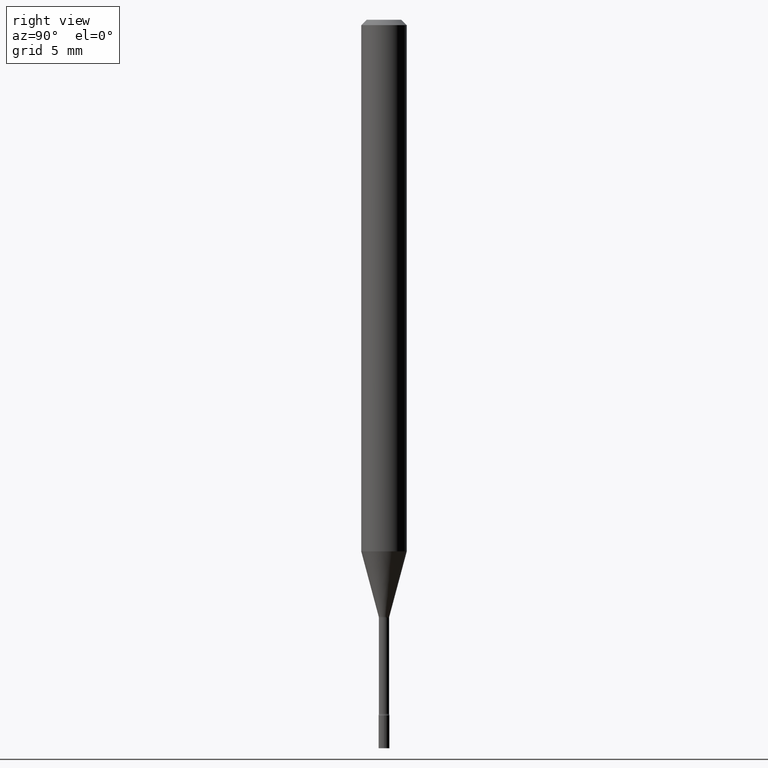
[diagram: clean part render]
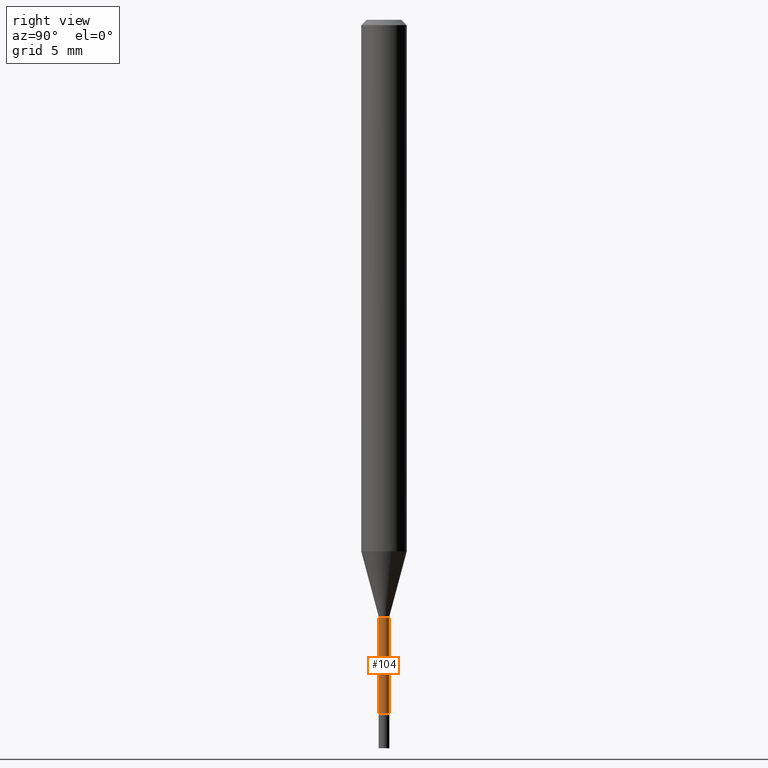
[diagram: same view with one face highlighted and labeled with its STEP entity id]
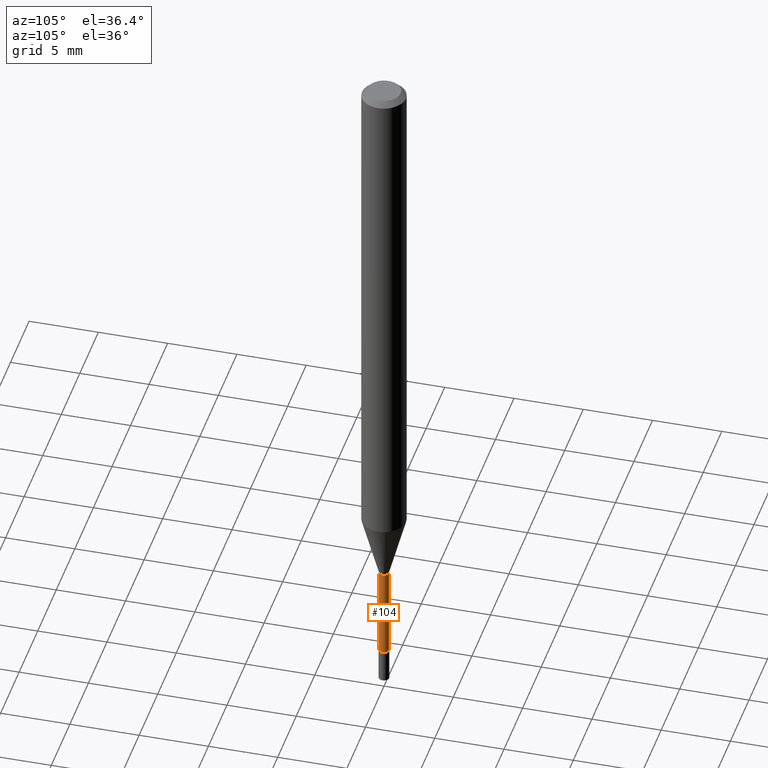
[diagram: same view with one face highlighted and labeled with its STEP entity id]
A machine part, right view. The second image highlights one B-rep face of the part: STEP entity #104.
A second angle (auxiliary view) of the same face is appended — the face is thin or edge-on in the first view.
In plain terms, the highlighted cylindrical surface (edge-blend (fillet) strip) has radius 0.3581 mm, axis along (-0, 0, 1).
Its self-contained STEP definition (entity closure, byte-faithful):
#22 = LINE ( 'NONE', #182, #98 ) ;
#25 = EDGE_CURVE ( 'NONE', #337, #144, #22, .T. ) ;
#32 = VERTEX_POINT ( 'NONE', #377 ) ;
#52 = CIRCLE ( 'NONE', #249, 0.01409999999999999448 ) ;
#72 = EDGE_LOOP ( 'NONE', ( #430, #423, #495, #345 ) ) ;
#81 = VERTEX_POINT ( 'NONE', #304 ) ;
#85 = CARTESIAN_POINT ( 'NONE',  ( 0.000000000000000000, 0.000000000000000000, 0.000000000000000000 ) ) ;
#86 = DIRECTION ( 'NONE',  ( -2.445538114681118856E-29, 3.491382085132104190E-15, 1.000000000000000000 ) ) ;
#90 = CIRCLE ( 'NONE', #356, 0.01410000000000004479 ) ;
#96 = DIRECTION ( 'NONE',  ( -2.445538114681118576E-29, 3.491382085132104585E-15, 1.000000000000000000 ) ) ;
#98 = VECTOR ( 'NONE', #502, 39.37007874015748143 ) ;
#104 = ADVANCED_FACE ( 'NONE', ( #283 ), #154, .T. ) ;
#125 = CARTESIAN_POINT ( 'NONE',  ( -9.845977375537648674E-17, -0.01410000000000002050, 4.922848740036274036E-17 ) ) ;
#144 = VERTEX_POINT ( 'NONE', #199 ) ;
#154 = CYLINDRICAL_SURFACE ( 'NONE', #469, 0.01410000000000002050 ) ;
#164 = VECTOR ( 'NONE', #96, 39.37007874015748143 ) ;
#182 = CARTESIAN_POINT ( 'NONE',  ( 1.001865257421742472E-16, 0.01410000000000002050, -4.922848740036274036E-17 ) ) ;
#199 = CARTESIAN_POINT ( 'NONE',  ( 1.001865257422207777E-16, 0.01409999999999425949, -1.641974787463811314 ) ) ;
#201 = DIRECTION ( 'NONE',  ( -6.982962677686266711E-15, -1.000000000000000000, 0.000000000000000000 ) ) ;
#236 = DIRECTION ( 'NONE',  ( -2.445538114681118856E-29, 3.491382085132104190E-15, 1.000000000000000000 ) ) ;
#249 = AXIS2_PLACEMENT_3D ( 'NONE', #357, #86, #515 ) ;
#283 = FACE_OUTER_BOUND ( 'NONE', #72, .T. ) ;
#304 = CARTESIAN_POINT ( 'NONE',  ( -9.845977375533614390E-17, -0.01410000000000572774, -1.641974787463811314 ) ) ;
#320 = DIRECTION ( 'NONE',  ( -2.445538114681118856E-29, 3.491382085132104190E-15, 1.000000000000000000 ) ) ;
#337 = VERTEX_POINT ( 'NONE', #344 ) ;
#341 = EDGE_CURVE ( 'NONE', #32, #337, #90, .T. ) ;
#344 = CARTESIAN_POINT ( 'NONE',  ( 1.033839680531413078E-16, 0.01409999999999339559, -1.904882383367231036 ) ) ;
#345 = ORIENTED_EDGE ( 'NONE', *, *, #486, .F. ) ;
#356 = AXIS2_PLACEMENT_3D ( 'NONE', #415, #320, #201 ) ;
#357 = CARTESIAN_POINT ( 'NONE',  ( 4.015511926088179569E-29, -5.732761357189744798E-15, -1.641974787463811314 ) ) ;
#370 = EDGE_CURVE ( 'NONE', #81, #144, #52, .T. ) ;
#377 = CARTESIAN_POINT ( 'NONE',  ( -9.845977375533007953E-17, -0.01410000000000669572, -1.904882383367231036 ) ) ;
#404 = DIRECTION ( 'NONE',  ( -6.982962677686265133E-15, -1.000000000000000000, 3.491382085132104190E-15 ) ) ;
#415 = CARTESIAN_POINT ( 'NONE',  ( 4.658462472509174243E-29, -6.650672227572096016E-15, -1.904882383367231036 ) ) ;
#423 = ORIENTED_EDGE ( 'NONE', *, *, #25, .T. ) ;
#430 = ORIENTED_EDGE ( 'NONE', *, *, #341, .T. ) ;
#469 = AXIS2_PLACEMENT_3D ( 'NONE', #85, #236, #404 ) ;
#484 = LINE ( 'NONE', #125, #164 ) ;
#486 = EDGE_CURVE ( 'NONE', #32, #81, #484, .T. ) ;
#495 = ORIENTED_EDGE ( 'NONE', *, *, #370, .F. ) ;
#502 = DIRECTION ( 'NONE',  ( -2.445538114681118576E-29, 3.491382085132104585E-15, 1.000000000000000000 ) ) ;
#515 = DIRECTION ( 'NONE',  ( -6.982962677686265133E-15, -1.000000000000000000, 0.000000000000000000 ) ) ;